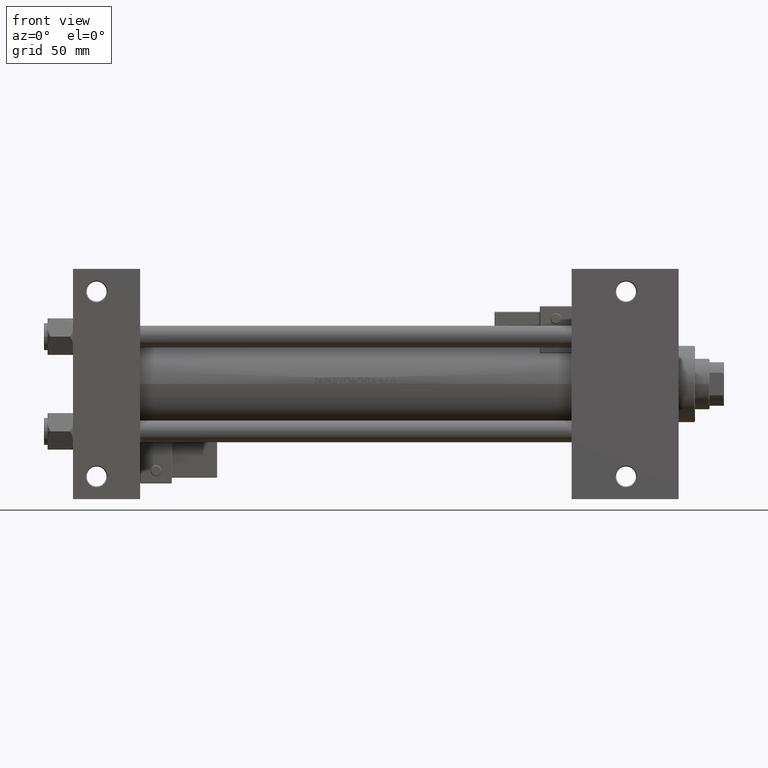
[diagram: clean part render]
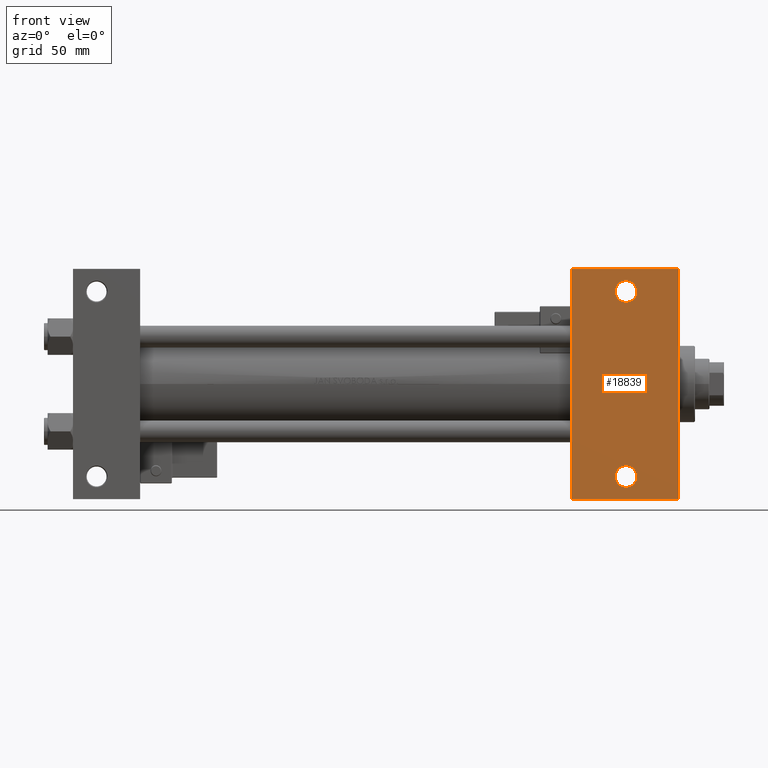
[diagram: same view with one face highlighted and labeled with its STEP entity id]
A machine part, front view. The second image highlights one B-rep face of the part: STEP entity #18839.
In plain terms, the highlighted planar face has unit normal (0, -1, 0).
Its self-contained STEP definition (entity closure, byte-faithful):
#167 = VERTEX_POINT ( 'NONE', #51443 ) ;
#381 = AXIS2_PLACEMENT_3D ( 'NONE', #5483, #44469, #45254 ) ;
#758 = DIRECTION ( 'NONE',  ( -1.000000000000000000, 0.000000000000000000, 0.000000000000000000 ) ) ;
#1129 = ORIENTED_EDGE ( 'NONE', *, *, #23464, .T. ) ;
#1291 = AXIS2_PLACEMENT_3D ( 'NONE', #32925, #29004, #758 ) ;
#1346 = CARTESIAN_POINT ( 'NONE',  ( 274.9999999999999432, 37.50000000000000000, -37.50000000000000000 ) ) ;
#2113 = CARTESIAN_POINT ( 'NONE',  ( 333.9999999999999432, 37.50000000000000000, -37.50000000000000000 ) ) ;
#2931 = EDGE_CURVE ( 'NONE', #20203, #23990, #41626, .T. ) ;
#3340 = CARTESIAN_POINT ( 'NONE',  ( 274.9999999999999432, -63.50000000000002842, -37.50000000000000000 ) ) ;
#5269 = CARTESIAN_POINT ( 'NONE',  ( 333.9999999999999432, 37.50000000000000000, -37.50000000000000000 ) ) ;
#5483 = CARTESIAN_POINT ( 'NONE',  ( 305.0000000000000000, -51.00000000000000000, -37.50000000000000000 ) ) ;
#5780 = DIRECTION ( 'NONE',  ( 0.000000000000000000, -1.000000000000000000, 0.000000000000000000 ) ) ;
#6558 = FACE_OUTER_BOUND ( 'NONE', #25146, .T. ) ;
#7200 = EDGE_CURVE ( 'NONE', #23990, #34570, #35990, .T. ) ;
#7771 = CARTESIAN_POINT ( 'NONE',  ( 274.9999999999999432, -63.50000000000002842, -37.50000000000000000 ) ) ;
#10913 = ORIENTED_EDGE ( 'NONE', *, *, #43272, .F. ) ;
#11186 = VECTOR ( 'NONE', #15861, 1000.000000000000000 ) ;
#11456 = CIRCLE ( 'NONE', #34822, 5.999500000000046462 ) ;
#12323 = EDGE_CURVE ( 'NONE', #30821, #20203, #32670, .T. ) ;
#12599 = DIRECTION ( 'NONE',  ( -1.000000000000000000, 0.000000000000000000, 0.000000000000000000 ) ) ;
#13357 = DIRECTION ( 'NONE',  ( 0.000000000000000000, -1.000000000000000000, 0.000000000000000000 ) ) ;
#13373 = ORIENTED_EDGE ( 'NONE', *, *, #7200, .T. ) ;
#13712 = VECTOR ( 'NONE', #20660, 1000.000000000000000 ) ;
#14123 = FACE_BOUND ( 'NONE', #48851, .T. ) ;
#15861 = DIRECTION ( 'NONE',  ( -1.000000000000000000, -0.000000000000000000, -0.000000000000000000 ) ) ;
#17148 = CIRCLE ( 'NONE', #1291, 5.999500000000046462 ) ;
#18056 = DIRECTION ( 'NONE',  ( -1.000000000000000000, 0.000000000000000000, -0.000000000000000000 ) ) ;
#18134 = CARTESIAN_POINT ( 'NONE',  ( 304.9999999999999432, 51.00000000000000711, -37.50000000000000000 ) ) ;
#18839 = ADVANCED_FACE ( 'NONE', ( #39419, #14123, #6558 ), #27385, .T. ) ;
#20203 = VERTEX_POINT ( 'NONE', #49780 ) ;
#20327 = EDGE_LOOP ( 'NONE', ( #1129, #45348 ) ) ;
#20660 = DIRECTION ( 'NONE',  ( 1.000000000000000000, 0.000000000000000000, 0.000000000000000000 ) ) ;
#22820 = DIRECTION ( 'NONE',  ( -1.000000000000000000, 0.000000000000000000, 0.000000000000000000 ) ) ;
#23021 = AXIS2_PLACEMENT_3D ( 'NONE', #2113, #31311, #18056 ) ;
#23327 = CARTESIAN_POINT ( 'NONE',  ( 299.0004999999998745, 51.00000000000000711, -37.50000000000000000 ) ) ;
#23358 = ORIENTED_EDGE ( 'NONE', *, *, #32076, .T. ) ;
#23464 = EDGE_CURVE ( 'NONE', #30467, #167, #28556, .T. ) ;
#23990 = VERTEX_POINT ( 'NONE', #44109 ) ;
#24951 = VECTOR ( 'NONE', #13357, 1000.000000000000000 ) ;
#25146 = EDGE_LOOP ( 'NONE', ( #10913, #30829, #35908, #13373 ) ) ;
#27175 = ORIENTED_EDGE ( 'NONE', *, *, #32986, .T. ) ;
#27385 = PLANE ( 'NONE',  #23021 ) ;
#28265 = CARTESIAN_POINT ( 'NONE',  ( 274.9999999999999432, 63.49999999999997158, -37.50000000000000000 ) ) ;
#28556 = CIRCLE ( 'NONE', #35264, 5.999500000000046462 ) ;
#29004 = DIRECTION ( 'NONE',  ( -0.000000000000000000, -0.000000000000000000, 1.000000000000000000 ) ) ;
#29619 = CIRCLE ( 'NONE', #381, 5.999500000000046462 ) ;
#30467 = VERTEX_POINT ( 'NONE', #23327 ) ;
#30821 = VERTEX_POINT ( 'NONE', #28265 ) ;
#30829 = ORIENTED_EDGE ( 'NONE', *, *, #12323, .T. ) ;
#31311 = DIRECTION ( 'NONE',  ( 0.000000000000000000, 0.000000000000000000, -1.000000000000000000 ) ) ;
#32076 = EDGE_CURVE ( 'NONE', #36303, #50353, #29619, .T. ) ;
#32670 = LINE ( 'NONE', #40568, #13712 ) ;
#32925 = CARTESIAN_POINT ( 'NONE',  ( 305.0000000000000000, -51.00000000000000000, -37.50000000000000000 ) ) ;
#32986 = EDGE_CURVE ( 'NONE', #50353, #36303, #17148, .T. ) ;
#34570 = VERTEX_POINT ( 'NONE', #3340 ) ;
#34822 = AXIS2_PLACEMENT_3D ( 'NONE', #40365, #40106, #12599 ) ;
#35017 = CARTESIAN_POINT ( 'NONE',  ( 299.0004999999999313, -51.00000000000000000, -37.50000000000000000 ) ) ;
#35264 = AXIS2_PLACEMENT_3D ( 'NONE', #18134, #50614, #22820 ) ;
#35908 = ORIENTED_EDGE ( 'NONE', *, *, #2931, .T. ) ;
#35990 = LINE ( 'NONE', #7771, #11186 ) ;
#36303 = VERTEX_POINT ( 'NONE', #51774 ) ;
#37179 = LINE ( 'NONE', #1346, #24951 ) ;
#38900 = EDGE_CURVE ( 'NONE', #167, #30467, #11456, .T. ) ;
#39419 = FACE_BOUND ( 'NONE', #20327, .T. ) ;
#40106 = DIRECTION ( 'NONE',  ( -0.000000000000000000, -0.000000000000000000, 1.000000000000000000 ) ) ;
#40365 = CARTESIAN_POINT ( 'NONE',  ( 304.9999999999999432, 51.00000000000000711, -37.50000000000000000 ) ) ;
#40568 = CARTESIAN_POINT ( 'NONE',  ( 274.9999999999999432, 63.49999999999997158, -37.50000000000000000 ) ) ;
#41626 = LINE ( 'NONE', #5269, #47828 ) ;
#43272 = EDGE_CURVE ( 'NONE', #30821, #34570, #37179, .T. ) ;
#44109 = CARTESIAN_POINT ( 'NONE',  ( 333.9999999999999432, -63.50000000000002842, -37.50000000000000000 ) ) ;
#44469 = DIRECTION ( 'NONE',  ( -0.000000000000000000, -0.000000000000000000, 1.000000000000000000 ) ) ;
#45254 = DIRECTION ( 'NONE',  ( -1.000000000000000000, 0.000000000000000000, 0.000000000000000000 ) ) ;
#45348 = ORIENTED_EDGE ( 'NONE', *, *, #38900, .T. ) ;
#47828 = VECTOR ( 'NONE', #5780, 1000.000000000000000 ) ;
#48851 = EDGE_LOOP ( 'NONE', ( #27175, #23358 ) ) ;
#49780 = CARTESIAN_POINT ( 'NONE',  ( 333.9999999999999432, 63.49999999999997158, -37.50000000000000000 ) ) ;
#50353 = VERTEX_POINT ( 'NONE', #35017 ) ;
#50614 = DIRECTION ( 'NONE',  ( -0.000000000000000000, -0.000000000000000000, 1.000000000000000000 ) ) ;
#51443 = CARTESIAN_POINT ( 'NONE',  ( 310.9995000000000118, 51.00000000000000711, -37.50000000000000000 ) ) ;
#51774 = CARTESIAN_POINT ( 'NONE',  ( 310.9995000000000118, -51.00000000000000000, -37.50000000000000000 ) ) ;